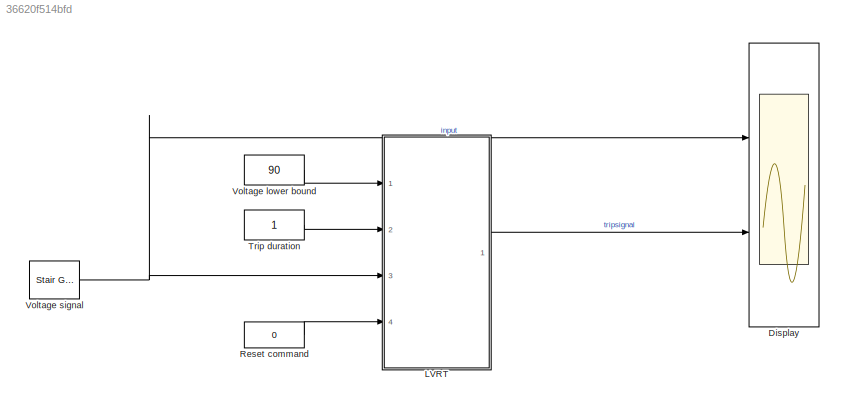
MODEL slx_36620f514bfd
KIND model
CONFIG AbsTol = auto
CONFIG EnableMultiTasking = off
CONFIG FixedStep = auto
CONFIG MaxStep = auto
CONFIG MinStep = auto
CONFIG RelTol = 1e-3
CONFIG SampleTimeConstraint = Unconstrained
CONFIG Solver = VariableStepAuto
CONFIG SolverName = VariableStepAuto
CONFIG StartTime = 0.0
CONFIG StopTime = 5
BLOCK [Scope] Display
  Floating = off
  NumInputPorts = 2
  Ports = [2]
  ScopeSpecificationString = Simulink.scopes.TimeScopeBlockCfg('CurrentConfiguration', extmgr.ConfigurationSet(extmgr.Configuration('Core','General UI',true,'FigureColor',[1 1 1]),extmgr.Configuration('Core','Source UI',true),extmgr.Configuration('Sources','WiredSimulink',true),extmgr.Configuration('Visuals','Time Domain',true,'SerializedDisplays',{struct('MinYLimReal','77.5','MaxYLimReal','102.5','YLabelReal','Voltage (V)','...<+2182ch>
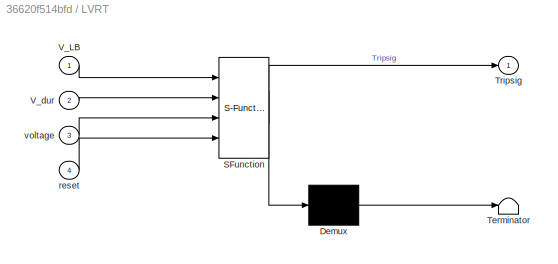
BLOCK [SubSystem] LVRT 
  BlockKeywords = __PRM__SERIALIZED__DATA__:Stateflow Chart,Stateflow Diagram
  ErrorFcn = Stateflow.Translate.translate
  PermitHierarchicalResolution = ExplicitOnly
  Ports = [4, 1]
  RequestExecContextInheritance = off
  SFBlockType = Chart
  TreatAsAtomicUnit = on
BLOCK [Demux] LVRT / Demux 
  Outputs = 1
  Ports = [1, 1]
BLOCK [S-Function] LVRT / SFunction 
  EnableBusSupport = on
  FunctionName = sf_sfun
  PortCounts = [4 2]
  Ports = [4, 2]
  SFcnIsStateOwnerBlock = off
  SFunctionDeploymentMode = off
  Tag = Stateflow S-Function LVRT 3
BLOCK [Terminator] LVRT / Terminator 
BLOCK [Outport] LVRT /Tripsig
  IconDisplay = Port number
BLOCK [Inport] LVRT /V_LB
  IconDisplay = Port number
BLOCK [Inport] LVRT /V_dur
  IconDisplay = Port number
  Port = 2
BLOCK [Inport] LVRT /reset
  IconDisplay = Port number
  Port = 4
BLOCK [Inport] LVRT /voltage
  IconDisplay = Port number
  Port = 3
BLOCK [Constant] Reset command
  Value = 0
BLOCK [Constant] Trip duration
BLOCK [Constant] Voltage lower bound
  Value = 90
BLOCK [Reference] Voltage signal   REF=powerlib_meascontrol/Pulse & Signal
Generators/Stair
Generator
  Ports = [0, 1]
  SourceBlock = powerlib_meascontrol/Pulse & Signal\nGenerators/Stair\nGenerator
  SourceProductBaseCode = PS
  SourceProductName = Simscape Electrical
  SourceType = Stair Generator
LINE LVRT :1 -> Display:2
LINE Reset command:1 -> LVRT :4
LINE Trip duration:1 -> LVRT :2
LINE Voltage lower bound:1 -> LVRT :1
NET Voltage signal :1 -> Display:1, LVRT :3
note: NET lines group one-source signal fan-out (src -> all destinations, sorted); 1:1 wires keep LINE
CHART LVRT  states=2 transitions=3
  STATE_LABEL 'Normal\nTripsig=0;'
  STATE_LABEL 'Trip\nTripsig=1;'
